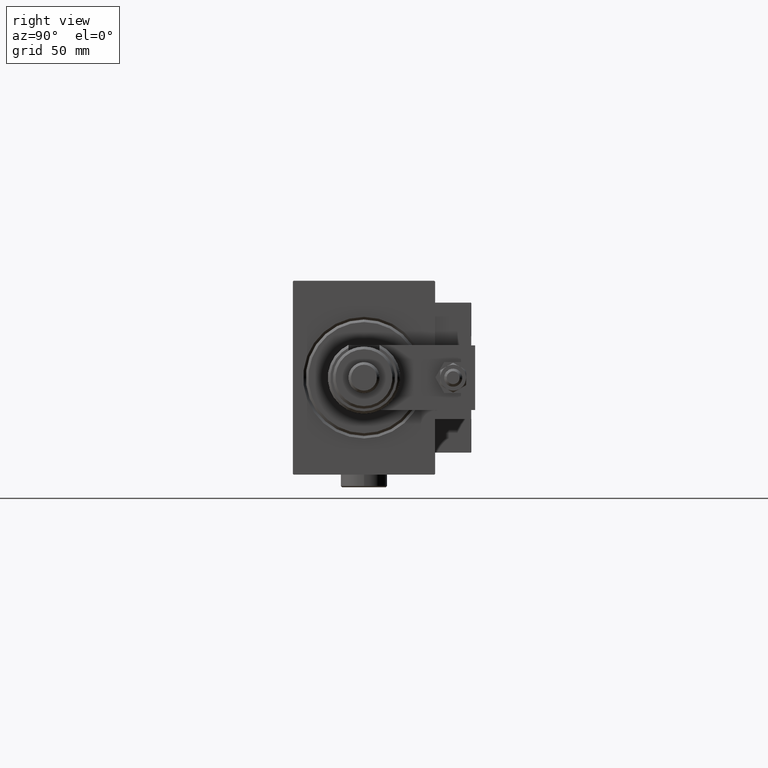
[diagram: clean part render]
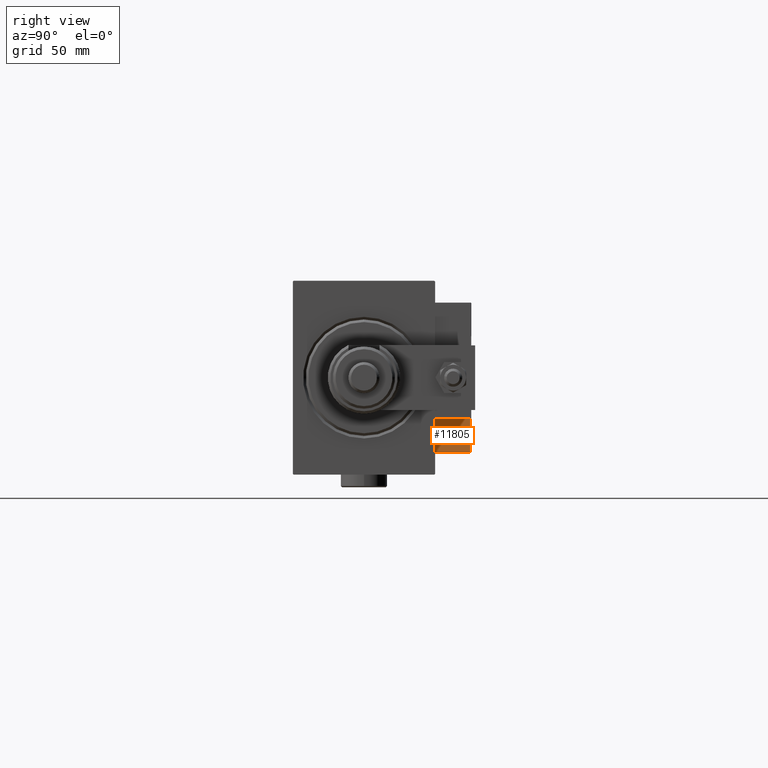
[diagram: same view with one face highlighted and labeled with its STEP entity id]
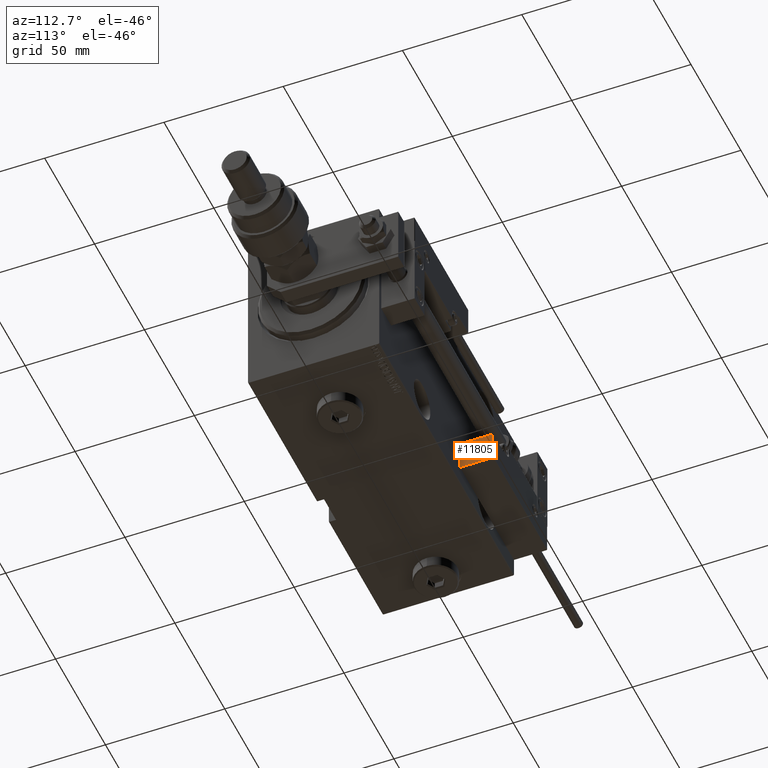
[diagram: same view with one face highlighted and labeled with its STEP entity id]
A machine part, right view. The second image highlights one B-rep face of the part: STEP entity #11805.
A second angle (auxiliary view) of the same face is appended — the face is thin or edge-on in the first view.
In plain terms, the highlighted planar face has unit normal (-1, -0, -0).
Its self-contained STEP definition (entity closure, byte-faithful):
#1680 = EDGE_CURVE ( 'NONE', #20682, #51273, #6691, .T. ) ;
#6691 = LINE ( 'NONE', #18185, #40315 ) ;
#10392 = PLANE ( 'NONE',  #16096 ) ;
#11571 = CARTESIAN_POINT ( 'NONE',  ( 27.00000000000006395, 20.00000000000001776, 13.70000000000000107 ) ) ;
#11805 = ADVANCED_FACE ( 'NONE', ( #35277 ), #10392, .F. ) ;
#13589 = CARTESIAN_POINT ( 'NONE',  ( 27.00000000000006395, 7.000000000000007994, 0.000000000000000000 ) ) ;
#14668 = DIRECTION ( 'NONE',  ( -1.000000000000000000, 0.000000000000000000, 0.000000000000000000 ) ) ;
#15710 = ORIENTED_EDGE ( 'NONE', *, *, #22689, .T. ) ;
#16096 = AXIS2_PLACEMENT_3D ( 'NONE', #27078, #14668, #17688 ) ;
#16160 = DIRECTION ( 'NONE',  ( -0.000000000000000000, -0.000000000000000000, -1.000000000000000000 ) ) ;
#17688 = DIRECTION ( 'NONE',  ( 0.000000000000000000, 0.000000000000000000, 1.000000000000000000 ) ) ;
#18185 = CARTESIAN_POINT ( 'NONE',  ( 27.00000000000006395, 7.000000000000007994, 14.00000000000000000 ) ) ;
#20682 = VERTEX_POINT ( 'NONE', #22034 ) ;
#21433 = EDGE_CURVE ( 'NONE', #38078, #20682, #23335, .T. ) ;
#22026 = CARTESIAN_POINT ( 'NONE',  ( 27.00000000000006395, 20.00000000000001776, 0.000000000000000000 ) ) ;
#22034 = CARTESIAN_POINT ( 'NONE',  ( 27.00000000000006395, 7.000000000000007994, 13.70000000000000107 ) ) ;
#22689 = EDGE_CURVE ( 'NONE', #51273, #44692, #22736, .T. ) ;
#22736 = LINE ( 'NONE', #39417, #33000 ) ;
#23335 = LINE ( 'NONE', #40011, #28592 ) ;
#26717 = ORIENTED_EDGE ( 'NONE', *, *, #29362, .F. ) ;
#27078 = CARTESIAN_POINT ( 'NONE',  ( 27.00000000000006395, 7.000000000000007994, 14.00000000000000000 ) ) ;
#27112 = DIRECTION ( 'NONE',  ( 0.000000000000000000, 1.000000000000000000, 0.000000000000000000 ) ) ;
#28592 = VECTOR ( 'NONE', #48453, 1000.000000000000000 ) ;
#29362 = EDGE_CURVE ( 'NONE', #38078, #44692, #53610, .T. ) ;
#33000 = VECTOR ( 'NONE', #27112, 1000.000000000000000 ) ;
#34145 = VECTOR ( 'NONE', #16160, 1000.000000000000000 ) ;
#35277 = FACE_OUTER_BOUND ( 'NONE', #50286, .T. ) ;
#38078 = VERTEX_POINT ( 'NONE', #11571 ) ;
#39417 = CARTESIAN_POINT ( 'NONE',  ( 27.00000000000006395, 7.000000000000007994, 0.000000000000000000 ) ) ;
#40011 = CARTESIAN_POINT ( 'NONE',  ( 27.00000000000006395, 7.000000000000007994, 13.70000000000000107 ) ) ;
#40315 = VECTOR ( 'NONE', #44141, 1000.000000000000000 ) ;
#41573 = ORIENTED_EDGE ( 'NONE', *, *, #21433, .T. ) ;
#41583 = CARTESIAN_POINT ( 'NONE',  ( 27.00000000000006395, 20.00000000000001776, 14.00000000000000000 ) ) ;
#44141 = DIRECTION ( 'NONE',  ( -0.000000000000000000, -0.000000000000000000, -1.000000000000000000 ) ) ;
#44692 = VERTEX_POINT ( 'NONE', #22026 ) ;
#45167 = ORIENTED_EDGE ( 'NONE', *, *, #1680, .T. ) ;
#48453 = DIRECTION ( 'NONE',  ( -0.000000000000000000, -1.000000000000000000, -0.000000000000000000 ) ) ;
#50286 = EDGE_LOOP ( 'NONE', ( #26717, #41573, #45167, #15710 ) ) ;
#51273 = VERTEX_POINT ( 'NONE', #13589 ) ;
#53610 = LINE ( 'NONE', #41583, #34145 ) ;